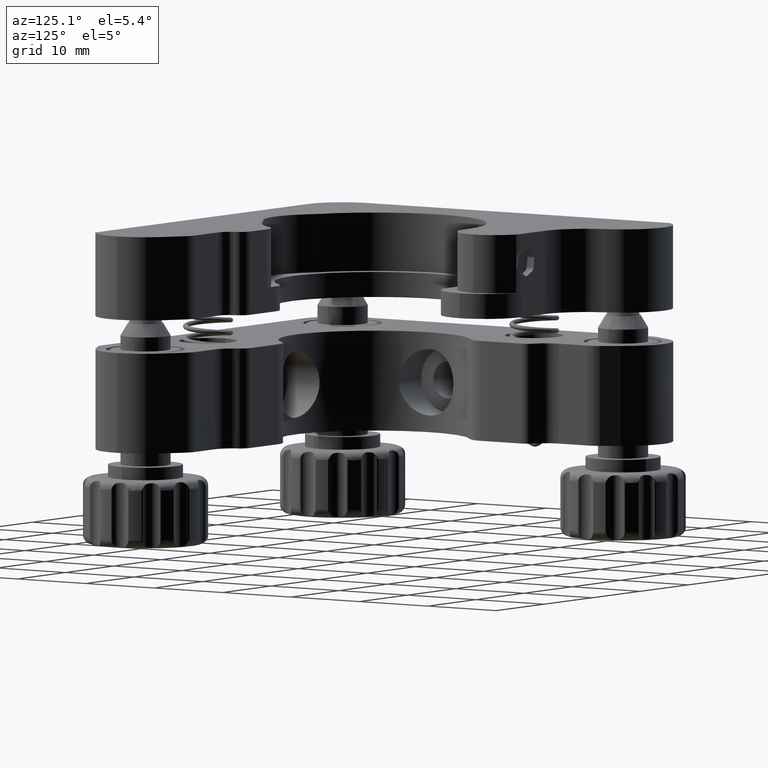
[diagram: clean part render]
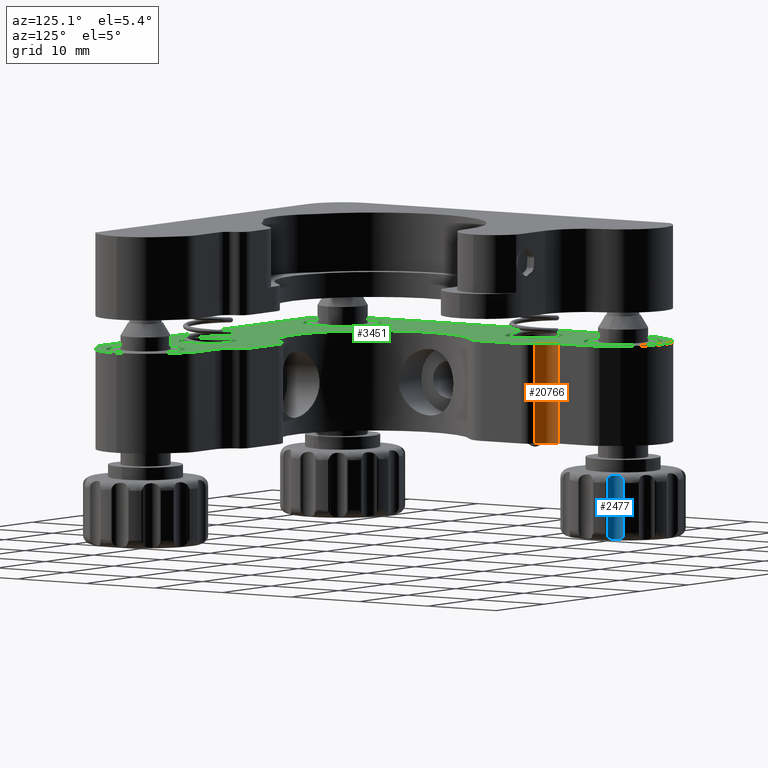
[diagram: same view with three faces highlighted in distinct colors, each labeled with its STEP entity id]
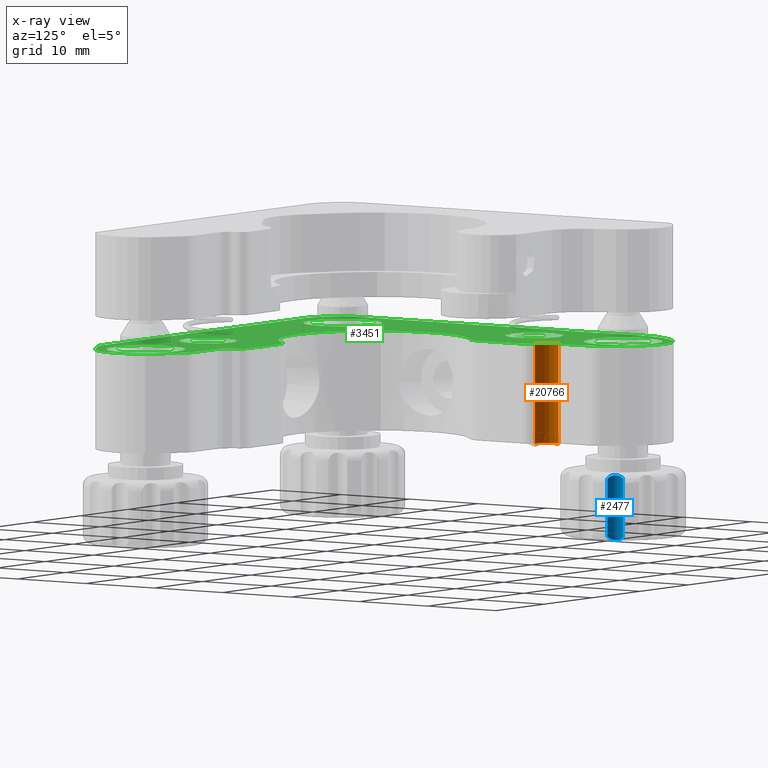
[diagram: x-ray of the same camera — body ghosted, the three highlighted faces saturated]
A machine part, auxiliary view with three faces highlighted in distinct colors.
The next image is the same camera in x-ray (body ghosted, the three faces saturated) — at least one of them is partly hidden behind the body in this view.
Their STEP definitions:

[orange] entity #20766 — the highlighted cylindrical surface (edge-blend (fillet) strip) has radius 2.5 mm, axis along (0, 0, 1).
#415 = ORIENTED_EDGE ( 'NONE', *, *, #5080, .F. ) ;
#1143 = CARTESIAN_POINT ( 'NONE',  ( -6.000000000000074600, 20.95809924354781400, 0.0000000000000000000 ) ) ;
#1997 = DIRECTION ( 'NONE',  ( 0.0000000000000000000, 0.0000000000000000000, 1.000000000000000000 ) ) ;
#2453 = VECTOR ( 'NONE', #19012, 1000.000000000000000 ) ;
#2906 = DIRECTION ( 'NONE',  ( 1.000000000000000000, 0.0000000000000000000, 0.0000000000000000000 ) ) ;
#2997 = VECTOR ( 'NONE', #1997, 1000.000000000000000 ) ;
#3212 = CYLINDRICAL_SURFACE ( 'NONE', #20828, 2.499999999999996900 ) ;
#3806 = VERTEX_POINT ( 'NONE', #19003 ) ;
#4233 = LINE ( 'NONE', #8971, #2453 ) ;
#4498 = DIRECTION ( 'NONE',  ( 0.0000000000000000000, 0.0000000000000000000, 1.000000000000000000 ) ) ;
#5080 = EDGE_CURVE ( 'NONE', #3806, #16571, #7603, .T. ) ;
#5453 = ORIENTED_EDGE ( 'NONE', *, *, #19995, .T. ) ;
#6459 = CARTESIAN_POINT ( 'NONE',  ( -8.500000000000069300, 20.95809924354778900, -12.00000000000000000 ) ) ;
#6652 = VERTEX_POINT ( 'NONE', #20136 ) ;
#6675 = AXIS2_PLACEMENT_3D ( 'NONE', #1143, #12478, #12410 ) ;
#7603 = LINE ( 'NONE', #8226, #2997 ) ;
#7834 = CARTESIAN_POINT ( 'NONE',  ( -6.000000000000074600, 20.95809924354781400, -12.00000000000000000 ) ) ;
#8226 = CARTESIAN_POINT ( 'NONE',  ( -6.937500000000063100, 18.64053721633041900, -12.00000000000000000 ) ) ;
#8327 = CIRCLE ( 'NONE', #10201, 2.499999999999996900 ) ;
#8428 = VERTEX_POINT ( 'NONE', #6459 ) ;
#8971 = CARTESIAN_POINT ( 'NONE',  ( -8.500000000000069300, 20.95809924354778900, -12.00000000000000000 ) ) ;
#10201 = AXIS2_PLACEMENT_3D ( 'NONE', #7834, #12746, #2906 ) ;
#10869 = CARTESIAN_POINT ( 'NONE',  ( -6.937500000000063100, 18.64053721633041900, 0.0000000000000000000 ) ) ;
#11019 = EDGE_LOOP ( 'NONE', ( #12615, #415, #19119, #5453 ) ) ;
#11460 = CIRCLE ( 'NONE', #6675, 2.499999999999996900 ) ;
#12410 = DIRECTION ( 'NONE',  ( 1.000000000000000000, 0.0000000000000000000, 0.0000000000000000000 ) ) ;
#12478 = DIRECTION ( 'NONE',  ( -0.0000000000000000000, -0.0000000000000000000, -1.000000000000000000 ) ) ;
#12615 = ORIENTED_EDGE ( 'NONE', *, *, #17856, .F. ) ;
#12746 = DIRECTION ( 'NONE',  ( -0.0000000000000000000, -0.0000000000000000000, -1.000000000000000000 ) ) ;
#14490 = DIRECTION ( 'NONE',  ( 1.000000000000000000, 0.0000000000000000000, 0.0000000000000000000 ) ) ;
#16571 = VERTEX_POINT ( 'NONE', #10869 ) ;
#16790 = FACE_OUTER_BOUND ( 'NONE', #11019, .T. ) ;
#17678 = CARTESIAN_POINT ( 'NONE',  ( -6.000000000000074600, 20.95809924354781400, -12.00000000000000000 ) ) ;
#17856 = EDGE_CURVE ( 'NONE', #16571, #6652, #11460, .T. ) ;
#19003 = CARTESIAN_POINT ( 'NONE',  ( -6.937500000000063100, 18.64053721633041900, -12.00000000000000000 ) ) ;
#19012 = DIRECTION ( 'NONE',  ( 0.0000000000000000000, 0.0000000000000000000, 1.000000000000000000 ) ) ;
#19119 = ORIENTED_EDGE ( 'NONE', *, *, #20035, .T. ) ;
#19995 = EDGE_CURVE ( 'NONE', #8428, #6652, #4233, .T. ) ;
#20035 = EDGE_CURVE ( 'NONE', #3806, #8428, #8327, .T. ) ;
#20136 = CARTESIAN_POINT ( 'NONE',  ( -8.500000000000069300, 20.95809924354778900, 0.0000000000000000000 ) ) ;
#20766 = ADVANCED_FACE ( 'NONE', ( #16790 ), #3212, .F. ) ;
#20828 = AXIS2_PLACEMENT_3D ( 'NONE', #17678, #4498, #14490 ) ;

[blue] entity #2477 — the highlighted cylindrical surface (edge-blend (fillet) strip) has radius 1.5 mm, axis along (-0, -0, 1).
#436 = CARTESIAN_POINT ( 'NONE',  ( -8.880079955535862300, 28.25826421388737900, -15.58589475707945100 ) ) ;
#902 = DIRECTION ( 'NONE',  ( -2.591633371648481500E-016, -2.137392280428668200E-016, 1.000000000000000000 ) ) ;
#1064 = CARTESIAN_POINT ( 'NONE',  ( -8.561624887414122800, 28.07887910994601600, -23.33011768350748100 ) ) ;
#1425 = VECTOR ( 'NONE', #19085, 1000.000000000000000 ) ;
#1449 = EDGE_CURVE ( 'NONE', #18139, #7960, #15572, .T. ) ;
#2029 = CARTESIAN_POINT ( 'NONE',  ( -8.880522833566256900, 28.25856534038381400, -23.07261814503166200 ) ) ;
#2062 = CARTESIAN_POINT ( 'NONE',  ( -9.470520122403344800, 29.64299100140152600, -15.74535539526752000 ) ) ;
#2238 = CARTESIAN_POINT ( 'NONE',  ( -9.216836963408205500, 28.59149248755502600, -23.19523134601925900 ) ) ;
#2242 = VECTOR ( 'NONE', #16584, 1000.000000000000000 ) ;
#2335 = CARTESIAN_POINT ( 'NONE',  ( -9.448806205443007800, 29.76318194866021100, -22.76056249868545200 ) ) ;
#2477 = ADVANCED_FACE ( 'NONE', ( #8953 ), #16406, .F. ) ;
#3207 = LINE ( 'NONE', #1064, #1425 ) ;
#3705 = CARTESIAN_POINT ( 'NONE',  ( -8.611074689901064600, 28.09970194878863100, -15.81592203706993700 ) ) ;
#3773 = CARTESIAN_POINT ( 'NONE',  ( -8.807802351625571900, 28.20829476045057800, -15.63022768021984600 ) ) ;
#4882 = CARTESIAN_POINT ( 'NONE',  ( -9.448806205442773300, 29.76318194866150400, -15.89767286833147400 ) ) ;
#5103 = AXIS2_PLACEMENT_3D ( 'NONE', #18844, #902, #12307 ) ;
#5531 = CARTESIAN_POINT ( 'NONE',  ( -9.397358301859727100, 28.93475166023192100, -23.19505438310903900 ) ) ;
#6189 = ORIENTED_EDGE ( 'NONE', *, *, #14523, .T. ) ;
#6531 = VERTEX_POINT ( 'NONE', #4882 ) ;
#6596 = LINE ( 'NONE', #11681, #2242 ) ;
#7066 = CARTESIAN_POINT ( 'NONE',  ( -9.396671682606241300, 28.93290649378948800, -15.46300402099570300 ) ) ;
#7960 = VERTEX_POINT ( 'NONE', #2335 ) ;
#8069 = CARTESIAN_POINT ( 'NONE',  ( -9.459526256709379400, 29.71100329082667100, -15.81651114663915100 ) ) ;
#8083 = EDGE_CURVE ( 'NONE', #13188, #18139, #3207, .T. ) ;
#8631 = CARTESIAN_POINT ( 'NONE',  ( -8.561624887414124500, 28.07887910994601600, -15.89767286832950400 ) ) ;
#8953 = FACE_OUTER_BOUND ( 'NONE', #20296, .T. ) ;
#9635 = CARTESIAN_POINT ( 'NONE',  ( -9.448806205442773300, 29.76318194866150400, -15.89767286833147400 ) ) ;
#10023 = ORIENTED_EDGE ( 'NONE', *, *, #15892, .T. ) ;
#10447 = CARTESIAN_POINT ( 'NONE',  ( -9.459604067833373300, 29.71062455383071200, -22.84231332994500400 ) ) ;
#11681 = CARTESIAN_POINT ( 'NONE',  ( -9.448806205443007800, 29.76318194866021100, -23.33011768350746400 ) ) ;
#11835 = CARTESIAN_POINT ( 'NONE',  ( -9.215703681497647200, 28.58988259398379800, -15.46318098390591600 ) ) ;
#11912 = CARTESIAN_POINT ( 'NONE',  ( -9.481338983901535400, 29.48635913932268700, -15.62986861408635300 ) ) ;
#12091 = CARTESIAN_POINT ( 'NONE',  ( -9.470462952926599300, 29.64342207980392300, -22.91247193503567200 ) ) ;
#12143 = CARTESIAN_POINT ( 'NONE',  ( -8.808312554699080400, 28.20862672747038100, -23.02836675292860500 ) ) ;
#12307 = DIRECTION ( 'NONE',  ( -0.2960857012914691100, -0.9551613777214501600, 0.0000000000000000000 ) ) ;
#12546 = ORIENTED_EDGE ( 'NONE', *, *, #1449, .T. ) ;
#12947 = CARTESIAN_POINT ( 'NONE',  ( -8.610718346712710400, 28.09955189608045600, -22.84172422037581300 ) ) ;
#13083 = CARTESIAN_POINT ( 'NONE',  ( -8.673024146507378500, 28.12895468349411800, -22.91287997174744000 ) ) ;
#13188 = VERTEX_POINT ( 'NONE', #18038 ) ;
#13482 = CARTESIAN_POINT ( 'NONE',  ( -9.452641546230136500, 29.12418404874674100, -15.48622797929856700 ) ) ;
#13521 = CARTESIAN_POINT ( 'NONE',  ( -9.090754401206245600, 28.43714574747577500, -23.17200738771639500 ) ) ;
#13670 = CARTESIAN_POINT ( 'NONE',  ( -9.481324165305665000, 29.48696765365093200, -23.02800768679510700 ) ) ;
#13813 = CARTESIAN_POINT ( 'NONE',  ( -9.480997634597862600, 29.39909904901036300, -23.07234060993549800 ) ) ;
#14523 = EDGE_CURVE ( 'NONE', #7960, #6531, #6596, .T. ) ;
#15213 = CARTESIAN_POINT ( 'NONE',  ( -8.672636314426872800, 28.12875800300341600, -15.74576343197927400 ) ) ;
#15469 = CARTESIAN_POINT ( 'NONE',  ( -9.452932707319943600, 29.12589651381559700, -23.17155288972859900 ) ) ;
#15572 = B_SPLINE_CURVE_WITH_KNOTS ( 'NONE', 3,
 ( #20663, #12947, #13083, #12143, #2029, #13521, #2238, #5531, #15469, #13813, #13670, #12091, #10447, #18482 ),
 .UNSPECIFIED., .F., .F.,
 ( 4, 2, 2, 2, 2, 2, 4 ),
 ( 0.0004549188434784842800, 0.0007454011220209182500, 0.001035883400563352300, 0.001616847957648216600, 0.002197812514733081200, 0.002488294793275513700, 0.002778777071817945800 ),
 .UNSPECIFIED. ) ;
#15892 = EDGE_CURVE ( 'NONE', #6531, #13188, #16515, .T. ) ;
#16024 = CARTESIAN_POINT ( 'NONE',  ( -8.561624887412907700, 28.07887910994549700, -22.76056249868348000 ) ) ;
#16406 = CYLINDRICAL_SURFACE ( 'NONE', #5103, 1.500000000000002900 ) ;
#16515 = B_SPLINE_CURVE_WITH_KNOTS ( 'NONE', 3,
 ( #9635, #8069, #2062, #11912, #16894, #13482, #7066, #11835, #18448, #436, #3773, #15213, #3705, #8631 ),
 .UNSPECIFIED., .F., .F.,
 ( 4, 2, 2, 2, 2, 2, 4 ),
 ( 0.0004549188434784854200, 0.0007454011220209158600, 0.001035883400563346400, 0.001616847957648214400, 0.002197812514733082500, 0.002488294793275516300, 0.002778777071817950500 ),
 .UNSPECIFIED. ) ;
#16584 = DIRECTION ( 'NONE',  ( -2.591633371648481500E-016, -2.137392280428668200E-016, 1.000000000000000000 ) ) ;
#16894 = CARTESIAN_POINT ( 'NONE',  ( -9.480999806000090400, 29.39856349938456900, -15.58561722198330000 ) ) ;
#18038 = CARTESIAN_POINT ( 'NONE',  ( -8.561624887414124500, 28.07887910994601600, -15.89767286832950400 ) ) ;
#18139 = VERTEX_POINT ( 'NONE', #16024 ) ;
#18448 = CARTESIAN_POINT ( 'NONE',  ( -9.089506874923932500, 28.43593703346196500, -15.48668247728635800 ) ) ;
#18482 = CARTESIAN_POINT ( 'NONE',  ( -9.448806205443007800, 29.76318194866021100, -22.76056249868545200 ) ) ;
#18844 = CARTESIAN_POINT ( 'NONE',  ( -7.979494996665857300, 29.46131348100941200, -23.33011768350745600 ) ) ;
#19085 = DIRECTION ( 'NONE',  ( 2.591633371648481500E-016, 2.137392280428668200E-016, -1.000000000000000000 ) ) ;
#19746 = ORIENTED_EDGE ( 'NONE', *, *, #8083, .T. ) ;
#20296 = EDGE_LOOP ( 'NONE', ( #10023, #19746, #12546, #6189 ) ) ;
#20663 = CARTESIAN_POINT ( 'NONE',  ( -8.561624887412907700, 28.07887910994549700, -22.76056249868348000 ) ) ;

[green] entity #3451 — the highlighted planar face has unit normal (0, 0, 1).
#65 = CIRCLE ( 'NONE', #4544, 6.000000000000005300 ) ;
#138 = EDGE_CURVE ( 'NONE', #3416, #20881, #11309, .T. ) ;
#158 = CARTESIAN_POINT ( 'NONE',  ( -6.000000000000040000, 11.36881700090205300, 0.0000000000000000000 ) ) ;
#522 = DIRECTION ( 'NONE',  ( 1.000000000000000000, 0.0000000000000000000, 0.0000000000000000000 ) ) ;
#579 = AXIS2_PLACEMENT_3D ( 'NONE', #20951, #5888, #11029 ) ;
#670 = CARTESIAN_POINT ( 'NONE',  ( -12.00000000000000000, 12.50000000000000000, 0.0000000000000000000 ) ) ;
#760 = DIRECTION ( 'NONE',  ( 0.0000000000000000000, 0.0000000000000000000, 1.000000000000000000 ) ) ;
#780 = ORIENTED_EDGE ( 'NONE', *, *, #5249, .T. ) ;
#795 = EDGE_CURVE ( 'NONE', #12093, #2669, #7739, .T. ) ;
#841 = ORIENTED_EDGE ( 'NONE', *, *, #11296, .F. ) ;
#870 = EDGE_LOOP ( 'NONE', ( #19357, #4904 ) ) ;
#894 = EDGE_CURVE ( 'NONE', #8189, #12302, #13334, .T. ) ;
#1059 = CIRCLE ( 'NONE', #4104, 2.500000000000002200 ) ;
#1129 = EDGE_CURVE ( 'NONE', #5705, #19294, #2358, .T. ) ;
#1143 = CARTESIAN_POINT ( 'NONE',  ( -6.000000000000074600, 20.95809924354781400, 0.0000000000000000000 ) ) ;
#1214 = EDGE_CURVE ( 'NONE', #12302, #20257, #65, .T. ) ;
#1242 = DIRECTION ( 'NONE',  ( 0.0000000000000000000, 0.0000000000000000000, 1.000000000000000000 ) ) ;
#1252 = ORIENTED_EDGE ( 'NONE', *, *, #6149, .T. ) ;
#1314 = CIRCLE ( 'NONE', #5601, 4.749999999999986700 ) ;
#1359 = CARTESIAN_POINT ( 'NONE',  ( 11.36881700090206900, -6.000000000000000000, 0.0000000000000000000 ) ) ;
#1468 = CIRCLE ( 'NONE', #4052, 1.499999999999997800 ) ;
#1552 = DIRECTION ( 'NONE',  ( -0.0000000000000000000, -0.0000000000000000000, 1.000000000000000000 ) ) ;
#1751 = EDGE_CURVE ( 'NONE', #20411, #19230, #16699, .T. ) ;
#1833 = PLANE ( 'NONE',  #20775 ) ;
#1945 = DIRECTION ( 'NONE',  ( 0.8660254037844404800, 0.4999999999999968900, -0.0000000000000000000 ) ) ;
#1956 = EDGE_CURVE ( 'NONE', #18010, #12093, #14586, .T. ) ;
#2107 = CARTESIAN_POINT ( 'NONE',  ( -7.137931034482784700, 9.016647966232662600, 0.0000000000000000000 ) ) ;
#2137 = DIRECTION ( 'NONE',  ( -1.000000000000000000, 0.0000000000000000000, 0.0000000000000000000 ) ) ;
#2154 = DIRECTION ( 'NONE',  ( 0.0000000000000000000, 0.0000000000000000000, 1.000000000000000000 ) ) ;
#2226 = CARTESIAN_POINT ( 'NONE',  ( 26.65167429635162200, -8.964651937060388300, 0.0000000000000000000 ) ) ;
#2358 = CIRCLE ( 'NONE', #15207, 3.499999999999996000 ) ;
#2577 = AXIS2_PLACEMENT_3D ( 'NONE', #11280, #9565, #14495 ) ;
#2669 = VERTEX_POINT ( 'NONE', #10983 ) ;
#2716 = CIRCLE ( 'NONE', #4469, 2.499999999999998700 ) ;
#2781 = CARTESIAN_POINT ( 'NONE',  ( 9.000000000000019500, -15.50000000000000000, 0.0000000000000000000 ) ) ;
#2785 = DIRECTION ( 'NONE',  ( 0.0000000000000000000, 0.0000000000000000000, 1.000000000000000000 ) ) ;
#2869 = ORIENTED_EDGE ( 'NONE', *, *, #7395, .F. ) ;
#3163 = AXIS2_PLACEMENT_3D ( 'NONE', #13559, #3998, #2137 ) ;
#3294 = VERTEX_POINT ( 'NONE', #12766 ) ;
#3305 = DIRECTION ( 'NONE',  ( 1.000000000000000000, 0.0000000000000000000, 0.0000000000000000000 ) ) ;
#3416 = VERTEX_POINT ( 'NONE', #14690 ) ;
#3451 = ADVANCED_FACE ( 'NONE', ( #20231, #19204, #12249, #14059, #11500, #13272 ), #1833, .T. ) ;
#3619 = VERTEX_POINT ( 'NONE', #2107 ) ;
#3675 = ORIENTED_EDGE ( 'NONE', *, *, #12107, .T. ) ;
#3808 = CARTESIAN_POINT ( 'NONE',  ( -10.41701856088546700, 28.68799305043417600, 0.0000000000000000000 ) ) ;
#3841 = DIRECTION ( 'NONE',  ( 1.000000000000000000, 0.0000000000000000000, 0.0000000000000000000 ) ) ;
#3893 = ORIENTED_EDGE ( 'NONE', *, *, #8274, .F. ) ;
#3996 = VECTOR ( 'NONE', #17876, 1000.000000000000000 ) ;
#3998 = DIRECTION ( 'NONE',  ( 0.0000000000000000000, 0.0000000000000000000, 1.000000000000000000 ) ) ;
#4017 = DIRECTION ( 'NONE',  ( -4.907394799385199900E-015, 1.000000000000000000, 0.0000000000000000000 ) ) ;
#4052 = AXIS2_PLACEMENT_3D ( 'NONE', #15072, #16753, #4216 ) ;
#4074 = AXIS2_PLACEMENT_3D ( 'NONE', #6717, #6855, #8358 ) ;
#4104 = AXIS2_PLACEMENT_3D ( 'NONE', #13596, #16650, #19939 ) ;
#4216 = DIRECTION ( 'NONE',  ( 1.000000000000000000, 0.0000000000000000000, 0.0000000000000000000 ) ) ;
#4469 = AXIS2_PLACEMENT_3D ( 'NONE', #17543, #2785, #19315 ) ;
#4496 = CIRCLE ( 'NONE', #14280, 11.50000000000000400 ) ;
#4544 = AXIS2_PLACEMENT_3D ( 'NONE', #5451, #760, #10590 ) ;
#4587 = ORIENTED_EDGE ( 'NONE', *, *, #894, .T. ) ;
#4686 = EDGE_LOOP ( 'NONE', ( #13614, #15606 ) ) ;
#4713 = CIRCLE ( 'NONE', #20448, 4.749999999999986700 ) ;
#4742 = CARTESIAN_POINT ( 'NONE',  ( -7.500000000000058600, 17.25000000000000000, 0.0000000000000000000 ) ) ;
#4904 = ORIENTED_EDGE ( 'NONE', *, *, #17828, .F. ) ;
#4928 = DIRECTION ( 'NONE',  ( 1.000000000000000000, 0.0000000000000000000, 0.0000000000000000000 ) ) ;
#5025 = DIRECTION ( 'NONE',  ( -0.0000000000000000000, -0.0000000000000000000, 1.000000000000000000 ) ) ;
#5032 = DIRECTION ( 'NONE',  ( -0.8141392251758458000, 0.5806697185406462000, 0.0000000000000000000 ) ) ;
#5091 = CARTESIAN_POINT ( 'NONE',  ( -15.50000000000000000, 25.50000000000000000, 0.0000000000000000000 ) ) ;
#5107 = AXIS2_PLACEMENT_3D ( 'NONE', #7089, #8651, #522 ) ;
#5116 = ORIENTED_EDGE ( 'NONE', *, *, #20301, .T. ) ;
#5183 = ORIENTED_EDGE ( 'NONE', *, *, #5794, .T. ) ;
#5249 = EDGE_CURVE ( 'NONE', #3619, #14296, #11168, .T. ) ;
#5451 = CARTESIAN_POINT ( 'NONE',  ( 25.50000000000000700, -15.50000000000000000, 0.0000000000000000000 ) ) ;
#5496 = CARTESIAN_POINT ( 'NONE',  ( -22.49999999999998600, 24.70577136594004100, 0.0000000000000000000 ) ) ;
#5528 = LINE ( 'NONE', #11345, #3996 ) ;
#5601 = AXIS2_PLACEMENT_3D ( 'NONE', #15230, #18621, #8792 ) ;
#5705 = VERTEX_POINT ( 'NONE', #2781 ) ;
#5718 = CARTESIAN_POINT ( 'NONE',  ( -19.00000000000000000, 12.50000000000000000, 0.0000000000000000000 ) ) ;
#5794 = EDGE_CURVE ( 'NONE', #2669, #15126, #13715, .T. ) ;
#5847 = EDGE_CURVE ( 'NONE', #6436, #3294, #5528, .T. ) ;
#5888 = DIRECTION ( 'NONE',  ( 0.0000000000000000000, 0.0000000000000000000, 1.000000000000000000 ) ) ;
#6022 = EDGE_CURVE ( 'NONE', #6460, #7532, #17330, .T. ) ;
#6080 = CARTESIAN_POINT ( 'NONE',  ( -6.000000000000068400, 17.25000000000000000, 0.0000000000000000000 ) ) ;
#6125 = DIRECTION ( 'NONE',  ( 0.0000000000000000000, 0.0000000000000000000, 1.000000000000000000 ) ) ;
#6149 = EDGE_CURVE ( 'NONE', #16978, #3619, #4496, .T. ) ;
#6171 = VECTOR ( 'NONE', #19831, 1000.000000000000100 ) ;
#6281 = VECTOR ( 'NONE', #5032, 1000.000000000000100 ) ;
#6319 = AXIS2_PLACEMENT_3D ( 'NONE', #5091, #10003, #3305 ) ;
#6321 = CARTESIAN_POINT ( 'NONE',  ( 25.50000000000000000, -15.50000000000000000, 9.735620512887875100E-016 ) ) ;
#6436 = VERTEX_POINT ( 'NONE', #16273 ) ;
#6460 = VERTEX_POINT ( 'NONE', #14393 ) ;
#6652 = VERTEX_POINT ( 'NONE', #20136 ) ;
#6675 = AXIS2_PLACEMENT_3D ( 'NONE', #1143, #12478, #12410 ) ;
#6717 = CARTESIAN_POINT ( 'NONE',  ( -19.99999999999998900, 24.70577136594004500, 0.0000000000000000000 ) ) ;
#6796 = VERTEX_POINT ( 'NONE', #13947 ) ;
#6843 = DIRECTION ( 'NONE',  ( -0.0000000000000000000, -0.0000000000000000000, -1.000000000000000000 ) ) ;
#6855 = DIRECTION ( 'NONE',  ( 0.0000000000000000000, 0.0000000000000000000, 1.000000000000000000 ) ) ;
#6869 = CIRCLE ( 'NONE', #5107, 3.499999999999999600 ) ;
#6948 = EDGE_CURVE ( 'NONE', #20257, #15765, #20102, .T. ) ;
#6975 = ORIENTED_EDGE ( 'NONE', *, *, #19044, .T. ) ;
#7073 = CARTESIAN_POINT ( 'NONE',  ( -17.49999999999998900, -22.50000000000000400, 0.0000000000000000000 ) ) ;
#7077 = AXIS2_PLACEMENT_3D ( 'NONE', #20920, #12568, #4928 ) ;
#7089 = CARTESIAN_POINT ( 'NONE',  ( -15.50000000000000000, 12.50000000000000000, 0.0000000000000000000 ) ) ;
#7179 = ORIENTED_EDGE ( 'NONE', *, *, #18082, .F. ) ;
#7347 = CARTESIAN_POINT ( 'NONE',  ( -22.49999999999998600, -17.49999999999999600, 0.0000000000000000000 ) ) ;
#7395 = EDGE_CURVE ( 'NONE', #9886, #8963, #20915, .T. ) ;
#7532 = VERTEX_POINT ( 'NONE', #1359 ) ;
#7554 = CARTESIAN_POINT ( 'NONE',  ( -10.75000000000001200, -15.50000000000000000, 9.735620512887875100E-016 ) ) ;
#7614 = VECTOR ( 'NONE', #18315, 1000.000000000000000 ) ;
#7658 = AXIS2_PLACEMENT_3D ( 'NONE', #15091, #2154, #18335 ) ;
#7739 = CIRCLE ( 'NONE', #6319, 5.999999999999956500 ) ;
#7798 = CARTESIAN_POINT ( 'NONE',  ( 28.68799305043417600, -10.41701856088540100, 0.0000000000000000000 ) ) ;
#7815 = ORIENTED_EDGE ( 'NONE', *, *, #9090, .T. ) ;
#8189 = VERTEX_POINT ( 'NONE', #12612 ) ;
#8274 = EDGE_CURVE ( 'NONE', #20881, #3416, #4713, .T. ) ;
#8358 = DIRECTION ( 'NONE',  ( -1.000000000000000000, 0.0000000000000000000, 0.0000000000000000000 ) ) ;
#8508 = CARTESIAN_POINT ( 'NONE',  ( 28.49999999999997900, -20.69615242270665000, 0.0000000000000000000 ) ) ;
#8584 = CIRCLE ( 'NONE', #8839, 2.500000000000002200 ) ;
#8625 = CARTESIAN_POINT ( 'NONE',  ( -10.41701856088550700, 28.68799305043415200, 0.0000000000000000000 ) ) ;
#8651 = DIRECTION ( 'NONE',  ( 0.0000000000000000000, 0.0000000000000000000, 1.000000000000000000 ) ) ;
#8781 = ORIENTED_EDGE ( 'NONE', *, *, #9288, .T. ) ;
#8792 = DIRECTION ( 'NONE',  ( 1.000000000000000000, 0.0000000000000000000, 0.0000000000000000000 ) ) ;
#8839 = AXIS2_PLACEMENT_3D ( 'NONE', #9974, #6843, #18295 ) ;
#8963 = VERTEX_POINT ( 'NONE', #17715 ) ;
#9032 = VERTEX_POINT ( 'NONE', #19493 ) ;
#9090 = EDGE_CURVE ( 'NONE', #15625, #16571, #14672, .T. ) ;
#9138 = CARTESIAN_POINT ( 'NONE',  ( -6.000000000000040000, 11.36881700090205300, 0.0000000000000000000 ) ) ;
#9216 = ORIENTED_EDGE ( 'NONE', *, *, #18328, .T. ) ;
#9288 = EDGE_CURVE ( 'NONE', #19230, #10663, #14925, .T. ) ;
#9352 = VECTOR ( 'NONE', #13562, 1000.000000000000000 ) ;
#9367 = VECTOR ( 'NONE', #13046, 1000.000000000000100 ) ;
#9383 = ORIENTED_EDGE ( 'NONE', *, *, #20451, .T. ) ;
#9550 = AXIS2_PLACEMENT_3D ( 'NONE', #14126, #6125, #20690 ) ;
#9565 = DIRECTION ( 'NONE',  ( 0.0000000000000000000, 0.0000000000000000000, 1.000000000000000000 ) ) ;
#9583 = EDGE_LOOP ( 'NONE', ( #11308, #3893 ) ) ;
#9600 = AXIS2_PLACEMENT_3D ( 'NONE', #16090, #1552, #20914 ) ;
#9604 = DIRECTION ( 'NONE',  ( 1.000000000000000000, 0.0000000000000000000, 0.0000000000000000000 ) ) ;
#9720 = ORIENTED_EDGE ( 'NONE', *, *, #6022, .T. ) ;
#9886 = VERTEX_POINT ( 'NONE', #7554 ) ;
#9901 = CIRCLE ( 'NONE', #4074, 2.499999999999995100 ) ;
#9919 = DIRECTION ( 'NONE',  ( 1.000000000000000000, 0.0000000000000000000, 0.0000000000000000000 ) ) ;
#9971 = AXIS2_PLACEMENT_3D ( 'NONE', #13634, #20113, #3841 ) ;
#9974 = CARTESIAN_POINT ( 'NONE',  ( 20.95809924354784200, -6.000000000000000000, 0.0000000000000000000 ) ) ;
#10003 = DIRECTION ( 'NONE',  ( 0.0000000000000000000, 0.0000000000000000000, 1.000000000000000000 ) ) ;
#10125 = VERTEX_POINT ( 'NONE', #15880 ) ;
#10178 = EDGE_CURVE ( 'NONE', #13340, #8189, #13354, .T. ) ;
#10301 = DIRECTION ( 'NONE',  ( 0.0000000000000000000, 0.0000000000000000000, 1.000000000000000000 ) ) ;
#10590 = DIRECTION ( 'NONE',  ( 1.000000000000000000, 0.0000000000000000000, 0.0000000000000000000 ) ) ;
#10611 = LINE ( 'NONE', #14671, #6281 ) ;
#10663 = VERTEX_POINT ( 'NONE', #14237 ) ;
#10869 = CARTESIAN_POINT ( 'NONE',  ( -6.937500000000063100, 18.64053721633041900, 0.0000000000000000000 ) ) ;
#10983 = CARTESIAN_POINT ( 'NONE',  ( -20.69615242270665300, 28.49999999999997200, 0.0000000000000000000 ) ) ;
#10993 = ORIENTED_EDGE ( 'NONE', *, *, #6948, .T. ) ;
#11027 = CARTESIAN_POINT ( 'NONE',  ( 28.49999999999997900, -20.69615242270665300, 0.0000000000000000000 ) ) ;
#11029 = DIRECTION ( 'NONE',  ( 1.000000000000000000, 0.0000000000000000000, 0.0000000000000000000 ) ) ;
#11141 = ORIENTED_EDGE ( 'NONE', *, *, #17856, .T. ) ;
#11168 = CIRCLE ( 'NONE', #3163, 2.999999999999999100 ) ;
#11169 = EDGE_CURVE ( 'NONE', #8963, #9886, #20264, .T. ) ;
#11190 = DIRECTION ( 'NONE',  ( -0.0000000000000000000, -1.000000000000000000, -0.0000000000000000000 ) ) ;
#11199 = CIRCLE ( 'NONE', #9550, 3.499999999999999600 ) ;
#11269 = AXIS2_PLACEMENT_3D ( 'NONE', #19612, #17962, #9919 ) ;
#11280 = CARTESIAN_POINT ( 'NONE',  ( 24.70577136594004100, -20.00000000000000000, 0.0000000000000000000 ) ) ;
#11296 = EDGE_CURVE ( 'NONE', #6796, #10125, #1314, .T. ) ;
#11308 = ORIENTED_EDGE ( 'NONE', *, *, #138, .F. ) ;
#11309 = CIRCLE ( 'NONE', #9600, 4.749999999999986700 ) ;
#11315 = VERTEX_POINT ( 'NONE', #670 ) ;
#11345 = CARTESIAN_POINT ( 'NONE',  ( 20.95809924354783100, -8.500000000000000000, 0.0000000000000000000 ) ) ;
#11405 = CARTESIAN_POINT ( 'NONE',  ( -8.964651937060482500, 26.65167429635158700, 0.0000000000000000000 ) ) ;
#11460 = CIRCLE ( 'NONE', #6675, 2.499999999999996900 ) ;
#11500 = FACE_BOUND ( 'NONE', #4686, .T. ) ;
#11579 = CARTESIAN_POINT ( 'NONE',  ( 11.36881700090206900, -6.000000000000000000, 0.0000000000000000000 ) ) ;
#11777 = CARTESIAN_POINT ( 'NONE',  ( 0.0000000000000000000, 0.0000000000000000000, 0.0000000000000000000 ) ) ;
#11982 = CARTESIAN_POINT ( 'NONE',  ( -22.49999999999998900, -17.49999999999999600, 0.0000000000000000000 ) ) ;
#12093 = VERTEX_POINT ( 'NONE', #3808 ) ;
#12107 = EDGE_CURVE ( 'NONE', #18859, #18010, #1059, .T. ) ;
#12249 = FACE_BOUND ( 'NONE', #15505, .T. ) ;
#12302 = VERTEX_POINT ( 'NONE', #11027 ) ;
#12321 = ORIENTED_EDGE ( 'NONE', *, *, #11169, .F. ) ;
#12410 = DIRECTION ( 'NONE',  ( 1.000000000000000000, 0.0000000000000000000, 0.0000000000000000000 ) ) ;
#12478 = DIRECTION ( 'NONE',  ( -0.0000000000000000000, -0.0000000000000000000, -1.000000000000000000 ) ) ;
#12510 = ORIENTED_EDGE ( 'NONE', *, *, #10178, .T. ) ;
#12568 = DIRECTION ( 'NONE',  ( -0.0000000000000000000, -0.0000000000000000000, 1.000000000000000000 ) ) ;
#12583 = VECTOR ( 'NONE', #1945, 1000.000000000000200 ) ;
#12612 = CARTESIAN_POINT ( 'NONE',  ( 25.95577136594002400, -22.16506350946110600, 0.0000000000000000000 ) ) ;
#12741 = DIRECTION ( 'NONE',  ( -1.000000000000000000, 0.0000000000000000000, 0.0000000000000000000 ) ) ;
#12766 = CARTESIAN_POINT ( 'NONE',  ( 20.95809924354783100, -8.500000000000000000, 0.0000000000000000000 ) ) ;
#12788 = ORIENTED_EDGE ( 'NONE', *, *, #19731, .T. ) ;
#12981 = CARTESIAN_POINT ( 'NONE',  ( -20.69615242270665300, 28.49999999999997200, 0.0000000000000000000 ) ) ;
#13046 = DIRECTION ( 'NONE',  ( -0.4999999999999945600, -0.8660254037844418200, 0.0000000000000000000 ) ) ;
#13173 = VECTOR ( 'NONE', #14939, 1000.000000000000000 ) ;
#13191 = ORIENTED_EDGE ( 'NONE', *, *, #16433, .T. ) ;
#13272 = FACE_OUTER_BOUND ( 'NONE', #20612, .T. ) ;
#13334 = LINE ( 'NONE', #8508, #12583 ) ;
#13340 = VERTEX_POINT ( 'NONE', #19833 ) ;
#13352 = DIRECTION ( 'NONE',  ( 1.000000000000000000, 0.0000000000000000000, 0.0000000000000000000 ) ) ;
#13354 = CIRCLE ( 'NONE', #2577, 2.499999999999998700 ) ;
#13366 = DIRECTION ( 'NONE',  ( 1.000000000000000000, 0.0000000000000000000, 0.0000000000000000000 ) ) ;
#13559 = CARTESIAN_POINT ( 'NONE',  ( -9.000000000000039100, 11.36881700090204600, 0.0000000000000000000 ) ) ;
#13562 = DIRECTION ( 'NONE',  ( 1.000000000000000000, 1.644062809264731000E-016, 0.0000000000000000000 ) ) ;
#13596 = CARTESIAN_POINT ( 'NONE',  ( -11.00000000000009600, 25.19999999999997100, 0.0000000000000000000 ) ) ;
#13614 = ORIENTED_EDGE ( 'NONE', *, *, #1129, .F. ) ;
#13634 = CARTESIAN_POINT ( 'NONE',  ( -15.50000000000000000, -15.50000000000000000, 9.735620512887875100E-016 ) ) ;
#13640 = DIRECTION ( 'NONE',  ( -0.0000000000000000000, -0.0000000000000000000, -1.000000000000000000 ) ) ;
#13715 = LINE ( 'NONE', #12981, #9367 ) ;
#13947 = CARTESIAN_POINT ( 'NONE',  ( -20.24999999999998600, 25.50000000000000000, 9.735620512887875100E-016 ) ) ;
#14059 = FACE_BOUND ( 'NONE', #870, .T. ) ;
#14126 = CARTESIAN_POINT ( 'NONE',  ( -15.50000000000000000, 12.50000000000000000, 0.0000000000000000000 ) ) ;
#14176 = ORIENTED_EDGE ( 'NONE', *, *, #1956, .T. ) ;
#14237 = CARTESIAN_POINT ( 'NONE',  ( -17.49999999999998900, -22.50000000000000400, 0.0000000000000000000 ) ) ;
#14280 = AXIS2_PLACEMENT_3D ( 'NONE', #11777, #13640, #13352 ) ;
#14296 = VERTEX_POINT ( 'NONE', #9138 ) ;
#14393 = CARTESIAN_POINT ( 'NONE',  ( 17.25000000000001100, -6.000000000000000000, 0.0000000000000000000 ) ) ;
#14453 = LINE ( 'NONE', #7073, #9352 ) ;
#14495 = DIRECTION ( 'NONE',  ( -1.000000000000000000, 0.0000000000000000000, 0.0000000000000000000 ) ) ;
#14552 = CARTESIAN_POINT ( 'NONE',  ( 20.75000000000001100, -15.50000000000000000, 9.735620512887875100E-016 ) ) ;
#14586 = LINE ( 'NONE', #8625, #6171 ) ;
#14598 = CARTESIAN_POINT ( 'NONE',  ( 31.50000000000001400, -15.50000000000000000, 0.0000000000000000000 ) ) ;
#14606 = VECTOR ( 'NONE', #11190, 1000.000000000000000 ) ;
#14671 = CARTESIAN_POINT ( 'NONE',  ( 28.68799305043417600, -10.41701856088540100, 0.0000000000000000000 ) ) ;
#14672 = CIRCLE ( 'NONE', #17938, 1.499999999999989100 ) ;
#14690 = CARTESIAN_POINT ( 'NONE',  ( 30.24999999999998600, -15.50000000000000000, 9.735620512887875100E-016 ) ) ;
#14877 = ORIENTED_EDGE ( 'NONE', *, *, #19229, .T. ) ;
#14925 = CIRCLE ( 'NONE', #7658, 5.000000000000000900 ) ;
#14939 = DIRECTION ( 'NONE',  ( -1.000000000000000000, -0.0000000000000000000, -0.0000000000000000000 ) ) ;
#14942 = EDGE_CURVE ( 'NONE', #7532, #16978, #19649, .T. ) ;
#15072 = CARTESIAN_POINT ( 'NONE',  ( 17.25000000000001100, -7.500000000000000000, 0.0000000000000000000 ) ) ;
#15091 = CARTESIAN_POINT ( 'NONE',  ( -17.49999999999998900, -17.49999999999999600, 0.0000000000000000000 ) ) ;
#15126 = VERTEX_POINT ( 'NONE', #19488 ) ;
#15207 = AXIS2_PLACEMENT_3D ( 'NONE', #20151, #10301, #16717 ) ;
#15230 = CARTESIAN_POINT ( 'NONE',  ( -15.50000000000000000, 25.50000000000000000, 9.735620512887875100E-016 ) ) ;
#15505 = EDGE_LOOP ( 'NONE', ( #2869, #12321 ) ) ;
#15606 = ORIENTED_EDGE ( 'NONE', *, *, #16635, .F. ) ;
#15625 = VERTEX_POINT ( 'NONE', #6080 ) ;
#15759 = DIRECTION ( 'NONE',  ( 1.000000000000000000, 0.0000000000000000000, 0.0000000000000000000 ) ) ;
#15765 = VERTEX_POINT ( 'NONE', #7798 ) ;
#15880 = CARTESIAN_POINT ( 'NONE',  ( -10.75000000000001200, 25.50000000000000000, 9.735620512887875100E-016 ) ) ;
#16042 = CARTESIAN_POINT ( 'NONE',  ( 25.50000000000000700, -15.50000000000000000, 0.0000000000000000000 ) ) ;
#16090 = CARTESIAN_POINT ( 'NONE',  ( 25.50000000000000000, -15.50000000000000000, 9.735620512887875100E-016 ) ) ;
#16198 = DIRECTION ( 'NONE',  ( 0.0000000000000000000, 0.0000000000000000000, 1.000000000000000000 ) ) ;
#16273 = CARTESIAN_POINT ( 'NONE',  ( 25.20000000000001000, -8.500000000000001800, 0.0000000000000000000 ) ) ;
#16296 = CARTESIAN_POINT ( 'NONE',  ( 11.36881700090206900, -9.000000000000001800, 0.0000000000000000000 ) ) ;
#16308 = AXIS2_PLACEMENT_3D ( 'NONE', #21224, #5025, #13366 ) ;
#16346 = VECTOR ( 'NONE', #4017, 1000.000000000000000 ) ;
#16366 = DIRECTION ( 'NONE',  ( 1.000000000000000000, 0.0000000000000000000, -0.0000000000000000000 ) ) ;
#16433 = EDGE_CURVE ( 'NONE', #6652, #18859, #17140, .T. ) ;
#16459 = VERTEX_POINT ( 'NONE', #2226 ) ;
#16477 = EDGE_CURVE ( 'NONE', #18509, #11315, #6869, .T. ) ;
#16571 = VERTEX_POINT ( 'NONE', #10869 ) ;
#16610 = ORIENTED_EDGE ( 'NONE', *, *, #19404, .T. ) ;
#16635 = EDGE_CURVE ( 'NONE', #19294, #5705, #18912, .T. ) ;
#16642 = CARTESIAN_POINT ( 'NONE',  ( 9.016647966232678600, -7.137931034482763300, 0.0000000000000000000 ) ) ;
#16650 = DIRECTION ( 'NONE',  ( 0.0000000000000000000, 0.0000000000000000000, 1.000000000000000000 ) ) ;
#16699 = LINE ( 'NONE', #7347, #14606 ) ;
#16717 = DIRECTION ( 'NONE',  ( 1.000000000000000000, 0.0000000000000000000, 0.0000000000000000000 ) ) ;
#16753 = DIRECTION ( 'NONE',  ( 0.0000000000000000000, 0.0000000000000000000, 1.000000000000000000 ) ) ;
#16978 = VERTEX_POINT ( 'NONE', #16642 ) ;
#16985 = ORIENTED_EDGE ( 'NONE', *, *, #1751, .T. ) ;
#17140 = LINE ( 'NONE', #20130, #16346 ) ;
#17330 = LINE ( 'NONE', #11579, #13173 ) ;
#17334 = CARTESIAN_POINT ( 'NONE',  ( 16.00000000000001400, -15.50000000000000000, 0.0000000000000000000 ) ) ;
#17543 = CARTESIAN_POINT ( 'NONE',  ( 25.20000000000001000, -11.00000000000000400, 0.0000000000000000000 ) ) ;
#17715 = CARTESIAN_POINT ( 'NONE',  ( -20.24999999999998600, -15.50000000000000000, 9.735620512887875100E-016 ) ) ;
#17828 = EDGE_CURVE ( 'NONE', #11315, #18509, #11199, .T. ) ;
#17856 = EDGE_CURVE ( 'NONE', #16571, #6652, #11460, .T. ) ;
#17876 = DIRECTION ( 'NONE',  ( -1.000000000000000000, 4.089495666154356700E-016, -0.0000000000000000000 ) ) ;
#17938 = AXIS2_PLACEMENT_3D ( 'NONE', #4742, #16198, #12741 ) ;
#17962 = DIRECTION ( 'NONE',  ( 0.0000000000000000000, 0.0000000000000000000, 1.000000000000000000 ) ) ;
#18010 = VERTEX_POINT ( 'NONE', #11405 ) ;
#18014 = DIRECTION ( 'NONE',  ( 0.0000000000000000000, 0.0000000000000000000, 1.000000000000000000 ) ) ;
#18082 = EDGE_CURVE ( 'NONE', #10125, #6796, #19930, .T. ) ;
#18295 = DIRECTION ( 'NONE',  ( -1.000000000000000000, 0.0000000000000000000, 0.0000000000000000000 ) ) ;
#18315 = DIRECTION ( 'NONE',  ( -2.949616558850282400E-015, 1.000000000000000000, 0.0000000000000000000 ) ) ;
#18328 = EDGE_CURVE ( 'NONE', #15126, #20411, #9901, .T. ) ;
#18335 = DIRECTION ( 'NONE',  ( -1.000000000000000000, 0.0000000000000000000, 0.0000000000000000000 ) ) ;
#18474 = ORIENTED_EDGE ( 'NONE', *, *, #14942, .T. ) ;
#18509 = VERTEX_POINT ( 'NONE', #5718 ) ;
#18621 = DIRECTION ( 'NONE',  ( -0.0000000000000000000, -0.0000000000000000000, 1.000000000000000000 ) ) ;
#18859 = VERTEX_POINT ( 'NONE', #20938 ) ;
#18912 = CIRCLE ( 'NONE', #11269, 3.499999999999996000 ) ;
#19044 = EDGE_CURVE ( 'NONE', #14296, #15625, #19391, .T. ) ;
#19152 = DIRECTION ( 'NONE',  ( -0.0000000000000000000, -0.0000000000000000000, 1.000000000000000000 ) ) ;
#19204 = FACE_BOUND ( 'NONE', #9583, .T. ) ;
#19229 = EDGE_CURVE ( 'NONE', #9032, #6460, #1468, .T. ) ;
#19230 = VERTEX_POINT ( 'NONE', #11982 ) ;
#19294 = VERTEX_POINT ( 'NONE', #17334 ) ;
#19315 = DIRECTION ( 'NONE',  ( 1.000000000000000000, 0.0000000000000000000, 0.0000000000000000000 ) ) ;
#19357 = ORIENTED_EDGE ( 'NONE', *, *, #16477, .F. ) ;
#19391 = LINE ( 'NONE', #158, #7614 ) ;
#19404 = EDGE_CURVE ( 'NONE', #16459, #6436, #2716, .T. ) ;
#19488 = CARTESIAN_POINT ( 'NONE',  ( -22.16506350946109200, 25.95577136594002700, 0.0000000000000000000 ) ) ;
#19493 = CARTESIAN_POINT ( 'NONE',  ( 18.64053721633044700, -6.937499999999997300, 0.0000000000000000000 ) ) ;
#19612 = CARTESIAN_POINT ( 'NONE',  ( 12.50000000000001800, -15.50000000000000000, 0.0000000000000000000 ) ) ;
#19649 = CIRCLE ( 'NONE', #579, 2.999999999999999100 ) ;
#19707 = EDGE_LOOP ( 'NONE', ( #7179, #841 ) ) ;
#19731 = EDGE_CURVE ( 'NONE', #3294, #9032, #8584, .T. ) ;
#19831 = DIRECTION ( 'NONE',  ( -0.5806697185406472000, 0.8141392251758451400, -0.0000000000000000000 ) ) ;
#19833 = CARTESIAN_POINT ( 'NONE',  ( 24.70577136594003400, -22.50000000000000000, 0.0000000000000000000 ) ) ;
#19930 = CIRCLE ( 'NONE', #7077, 4.749999999999986700 ) ;
#19939 = DIRECTION ( 'NONE',  ( -1.000000000000000000, 0.0000000000000000000, 0.0000000000000000000 ) ) ;
#20030 = ORIENTED_EDGE ( 'NONE', *, *, #1214, .T. ) ;
#20102 = CIRCLE ( 'NONE', #20585, 6.000000000000005300 ) ;
#20113 = DIRECTION ( 'NONE',  ( -0.0000000000000000000, -0.0000000000000000000, 1.000000000000000000 ) ) ;
#20130 = CARTESIAN_POINT ( 'NONE',  ( -8.500000000000069300, 20.95809924354778900, 0.0000000000000000000 ) ) ;
#20136 = CARTESIAN_POINT ( 'NONE',  ( -8.500000000000069300, 20.95809924354778900, 0.0000000000000000000 ) ) ;
#20151 = CARTESIAN_POINT ( 'NONE',  ( 12.50000000000001800, -15.50000000000000000, 0.0000000000000000000 ) ) ;
#20231 = FACE_BOUND ( 'NONE', #19707, .T. ) ;
#20257 = VERTEX_POINT ( 'NONE', #14598 ) ;
#20264 = CIRCLE ( 'NONE', #16308, 4.749999999999986700 ) ;
#20301 = EDGE_CURVE ( 'NONE', #15765, #16459, #10611, .T. ) ;
#20411 = VERTEX_POINT ( 'NONE', #5496 ) ;
#20448 = AXIS2_PLACEMENT_3D ( 'NONE', #6321, #19152, #9604 ) ;
#20451 = EDGE_CURVE ( 'NONE', #10663, #13340, #14453, .T. ) ;
#20585 = AXIS2_PLACEMENT_3D ( 'NONE', #16042, #1242, #15759 ) ;
#20612 = EDGE_LOOP ( 'NONE', ( #18474, #1252, #780, #6975, #7815, #11141, #13191, #3675, #14176, #21094, #5183, #9216, #16985, #8781, #9383, #12510, #4587, #20030, #10993, #5116, #16610, #21035, #12788, #14877, #9720 ) ) ;
#20690 = DIRECTION ( 'NONE',  ( 1.000000000000000000, 0.0000000000000000000, 0.0000000000000000000 ) ) ;
#20775 = AXIS2_PLACEMENT_3D ( 'NONE', #16296, #18014, #16366 ) ;
#20881 = VERTEX_POINT ( 'NONE', #14552 ) ;
#20914 = DIRECTION ( 'NONE',  ( 1.000000000000000000, 0.0000000000000000000, 0.0000000000000000000 ) ) ;
#20915 = CIRCLE ( 'NONE', #9971, 4.749999999999986700 ) ;
#20920 = CARTESIAN_POINT ( 'NONE',  ( -15.50000000000000000, 25.50000000000000000, 9.735620512887875100E-016 ) ) ;
#20938 = CARTESIAN_POINT ( 'NONE',  ( -8.500000000000094100, 25.19999999999999200, 0.0000000000000000000 ) ) ;
#20951 = CARTESIAN_POINT ( 'NONE',  ( 11.36881700090206900, -9.000000000000001800, 0.0000000000000000000 ) ) ;
#21035 = ORIENTED_EDGE ( 'NONE', *, *, #5847, .T. ) ;
#21094 = ORIENTED_EDGE ( 'NONE', *, *, #795, .T. ) ;
#21224 = CARTESIAN_POINT ( 'NONE',  ( -15.50000000000000000, -15.50000000000000000, 9.735620512887875100E-016 ) ) ;